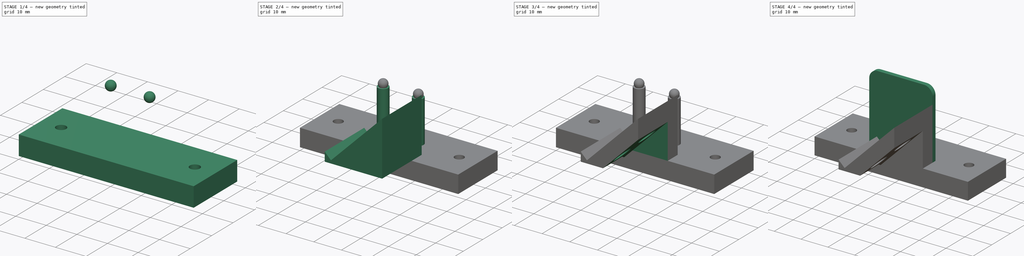
[diagram: build sequence overview — one tinted view per stage of 4, left to right]
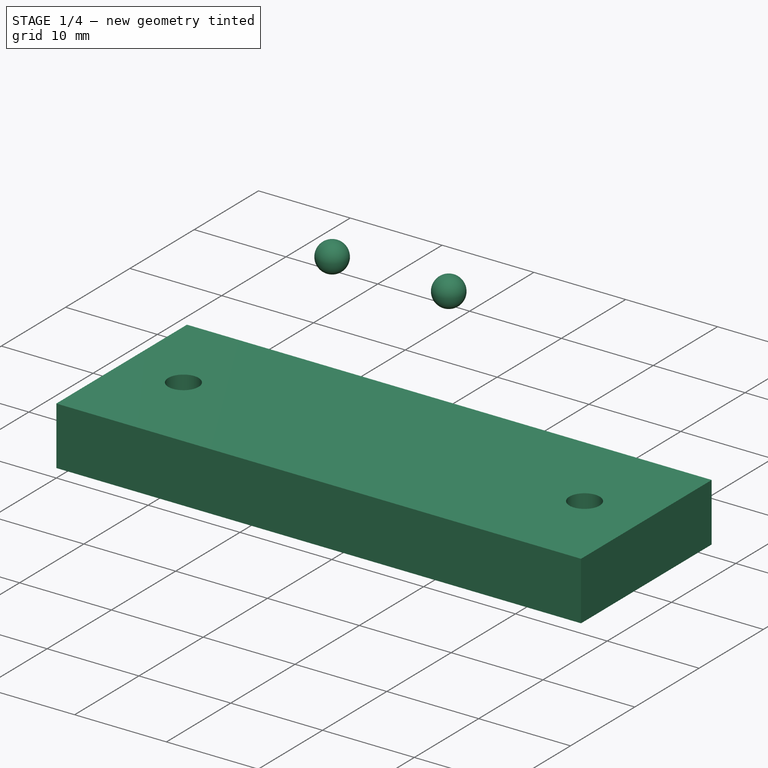
[diagram: stage 1 of 4 — iso view after this stage's code; geometry added in this stage tinted green]
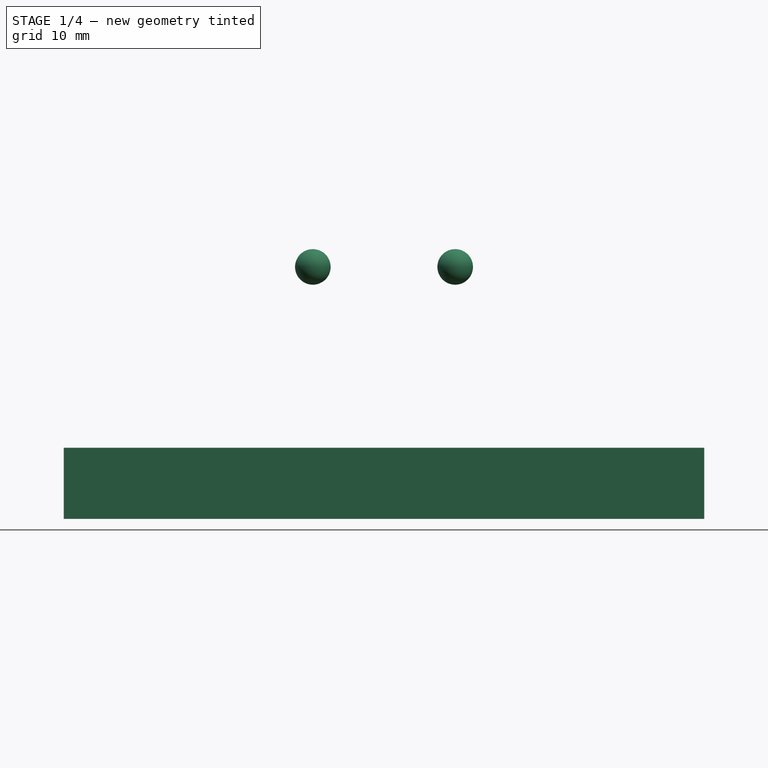
[diagram: stage 1 of 4 — front view after this stage's code; geometry added in this stage tinted green]
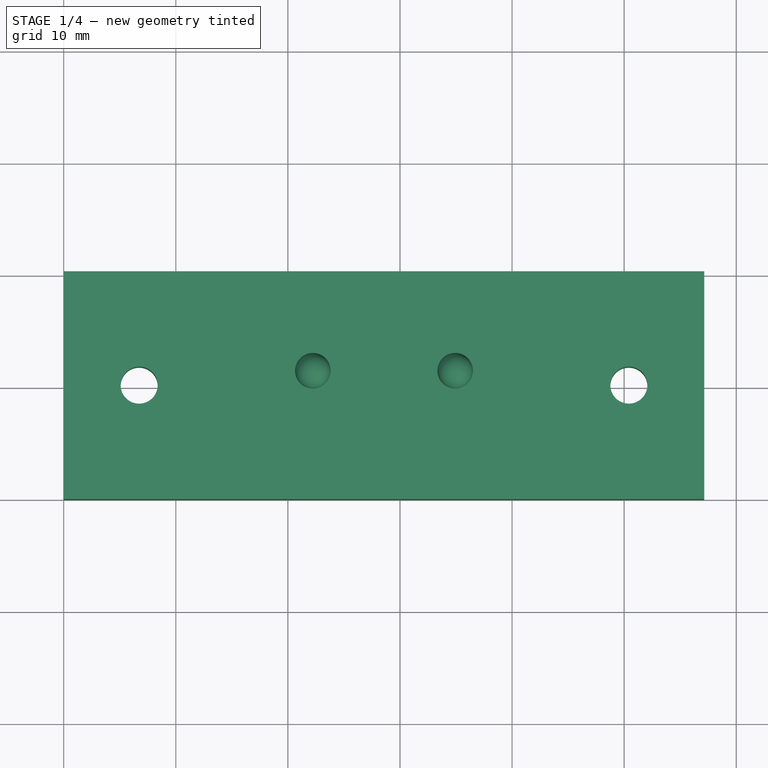
[diagram: stage 1 of 4 — top view after this stage's code; geometry added in this stage tinted green]
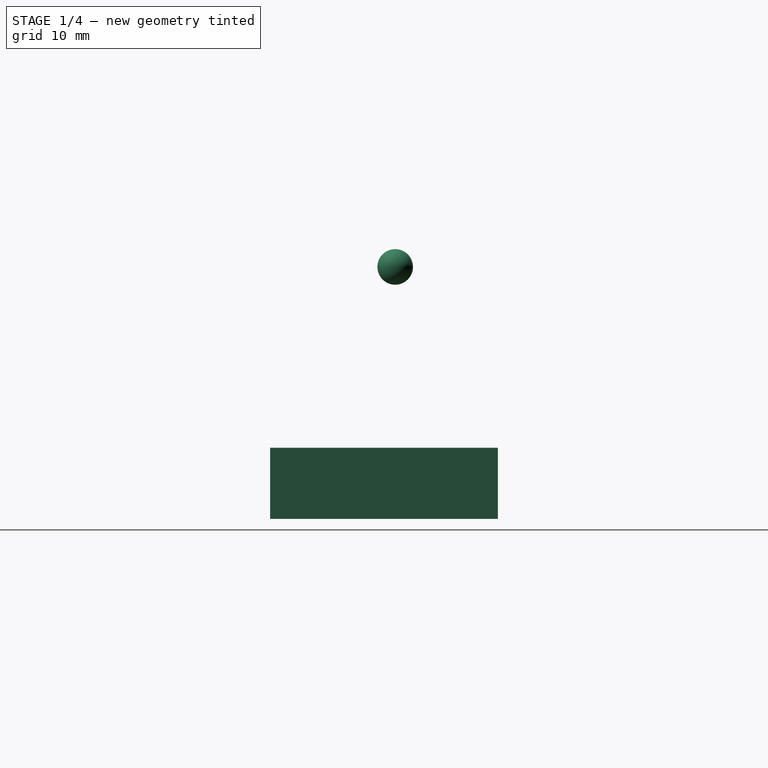
[diagram: stage 1 of 4 — right view after this stage's code; geometry added in this stage tinted green]
FCSTD DOCUMENT  (FreeCAD 0.18R16110 (Git))
Label: Touch post panel below-mounted with front-silvered mirror with magnet holes with wall and post back 1mm with thick base v7.4
License: All rights reserved
LicenseURL: http://en.wikipedia.org/wiki/All_rights_reserved
objects: Sketcher::SketchObject×6, PartDesign::Pad×4, PartDesign::Pocket×2, PartDesign::Fillet×2, PartDesign::Chamfer×2, Part::Sphere×2, PartDesign::Body×1, Part::MultiFuse×1, Spreadsheet::Sheet×1
note: 26 computed .brp shape members not serialized (recipe doc carries the construction recipe); baked Part::Feature solids carry a one-line shape summary decoded from their .brp

FEATURE [Sketcher::SketchObject] Sketch  label="Mounting platform"
  MapMode = 5
  Support = -> [XY_Plane]
  expr: Constraints[16] = (2.25in - 1.72in) / 2
  expr: Constraints[15] = (2.25in - 1.72in) / 2
  expr: Constraints[11] = 0.13in / 2
  sketch-geometry (6):
    g0: LineSegment StartX=0 StartY=20.32 StartZ=0 EndX=57.15 EndY=20.32 EndZ=0
    g1: LineSegment StartX=57.15 StartY=20.32 StartZ=0 EndX=57.15 EndY=0 EndZ=0
    g2: LineSegment StartX=57.15 StartY=0 StartZ=0 EndX=0 EndY=0 EndZ=0
    g3: LineSegment StartX=0 StartY=0 StartZ=0 EndX=0 EndY=20.32 EndZ=0
    g4: Circle CenterX=6.731 CenterY=10.16 CenterZ=0 NormalX=0 NormalY=0 NormalZ=1 AngleXU=0 Radius=1.651
    g5: Circle CenterX=50.419 CenterY=10.16 CenterZ=0 NormalX=0 NormalY=0 NormalZ=1 AngleXU=0 Radius=1.651
  constraints (17):
    c: Coincident(g0,g1)
    c: Coincident(g1,g2)
    c: Coincident(g2,g3)
    c: Coincident(g3,g0)
    c: Horizontal(g0)
    c: Horizontal(g2)
    c: Vertical(g1)
    c: Vertical(g3)
    c: Coincident(g2,g-1)
    c: Distance(g0) = 57.15
    c: Distance(g1) = 20.32
    c: Radius(g4) = 1.651
    c: Equal(g4,g5)
    c: DistanceY(g5,g4) = 0
    c: DistanceY(g-1,g4) = 10.16
    c: DistanceX(g4) = 6.731
    c: DistanceX(g5,g1) = 6.731
FEATURE [PartDesign::Pad] Pad
  Length = 6.35
  Length2 = 99.9998
  Midplane = true
  Profile = -> Sketch
  Type = 0
FEATURE [PartDesign::Body] Body
  Group = -> [Sketch,Pad,Sketch001,Pad001,Sketch002,Pocket,Sketch003,Pad002,Fillet,Chamfer,Chamfer001,Sketch004,Pocket001,Sketch005,Pad003,Fillet001]
  Origin = -> Origin
  Tip = -> Fillet001
FEATURE [Part::Sphere] Sphere  label="Ball1"
  Angle1 = -90
  Angle2 = 90
  Angle3 = 360
  AttacherType = Attacher::AttachEngine3D
  Placement = pos=(34.925,11.16,19.304) rot=(0,0,1;0rad)
  Radius = 1.5875
  expr: Placement.Base.y = 0.4" + ss.dyPost
  expr: Radius = 0.125" / 2
FEATURE [Part::Sphere] Sphere001  label="Ball002"
  Angle1 = -90
  Angle2 = 90
  Angle3 = 360
  AttacherType = Attacher::AttachEngine3D
  Placement = pos=(22.225,11.16,19.304) rot=(0,0,1;0rad)
  Radius = 1.5875
  expr: Placement.Base.y = 0.4" + ss.dyPost
  expr: Radius = 0.125" / 2
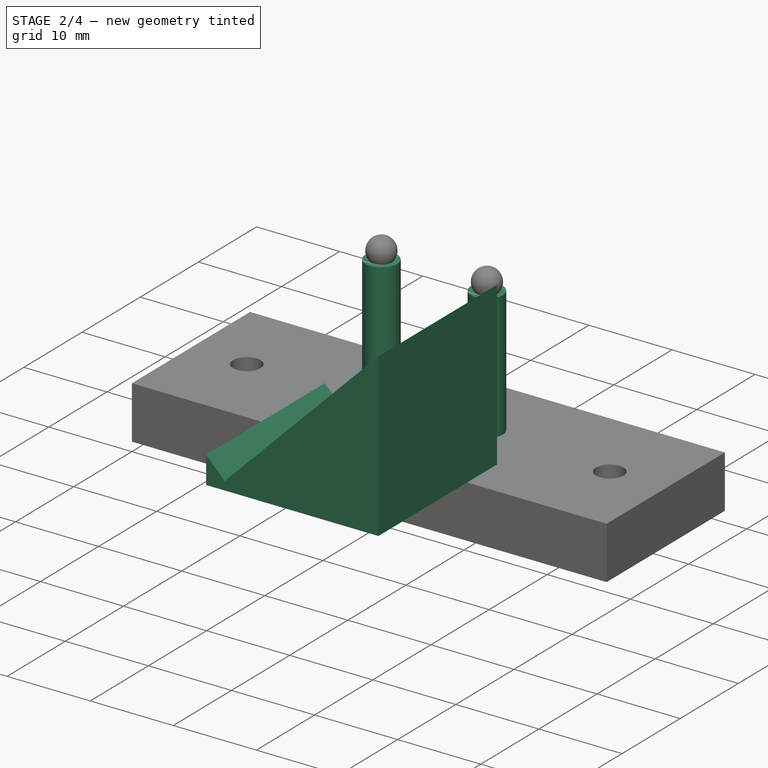
[diagram: stage 2 of 4 — iso view after this stage's code; geometry added in this stage tinted green]
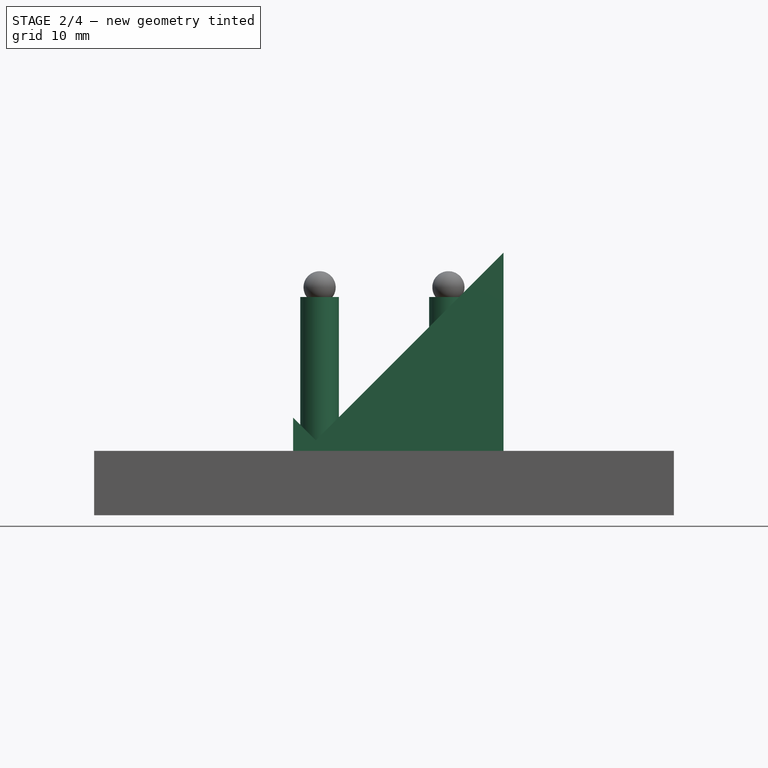
[diagram: stage 2 of 4 — front view after this stage's code; geometry added in this stage tinted green]
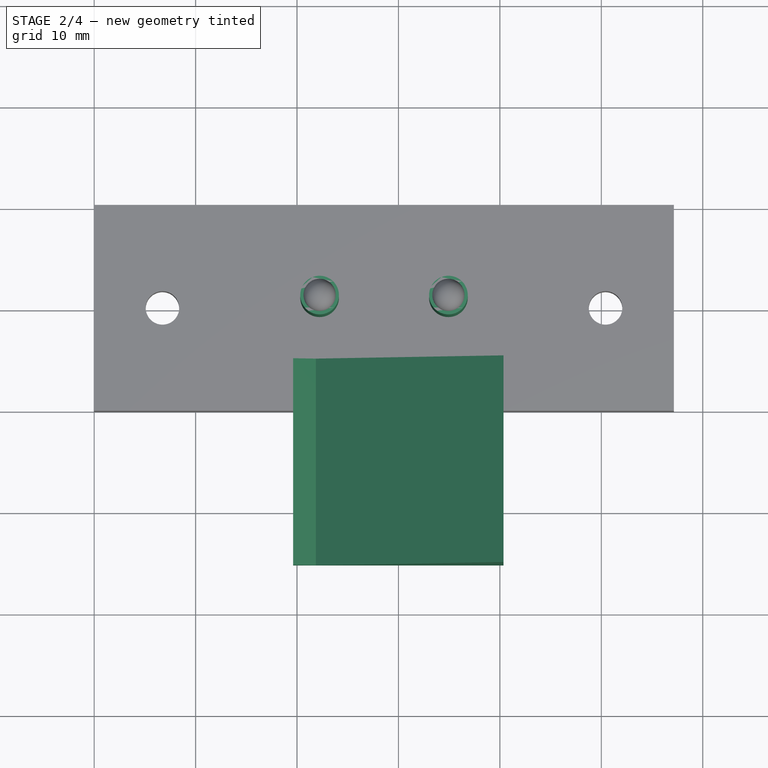
[diagram: stage 2 of 4 — top view after this stage's code; geometry added in this stage tinted green]
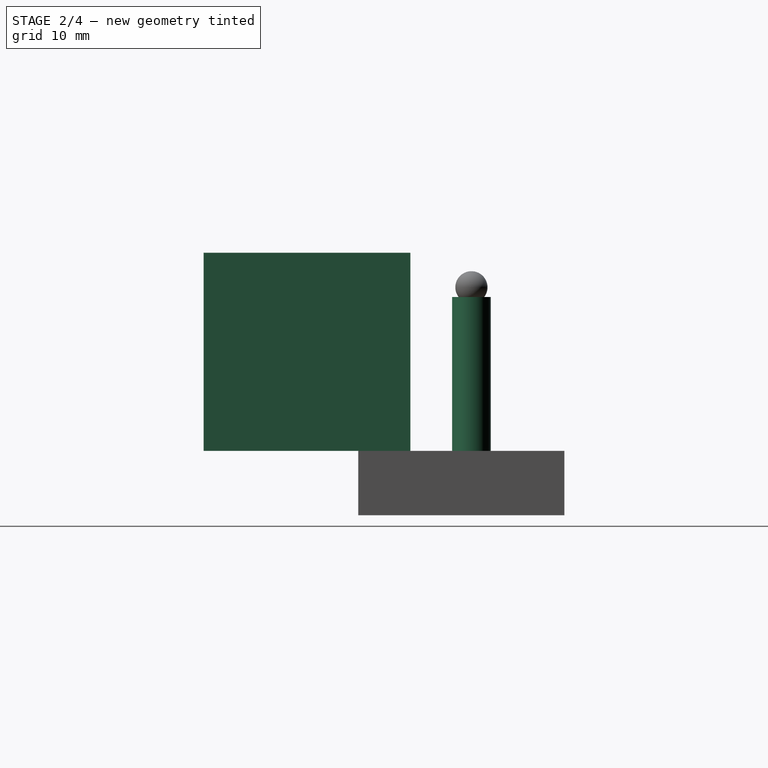
[diagram: stage 2 of 4 — right view after this stage's code; geometry added in this stage tinted green]
FEATURE [Sketcher::SketchObject] Sketch001  label="Posts"
  MapMode = 5
  Placement = pos=(0,0,3.175) rot=(0,0,1;0rad)
  Support = -> [Pad]
  expr: Constraints[3] = 0.4" + ss.dyPost
  expr: Constraints[5] = (2.25in - 0.5in) / 2
  sketch-geometry (2):
    g0: Circle CenterX=22.225 CenterY=11.16 CenterZ=0 NormalX=0 NormalY=0 NormalZ=1 AngleXU=0 Radius=1.905
    g1: Circle CenterX=34.925 CenterY=11.16 CenterZ=0 NormalX=0 NormalY=0 NormalZ=1 AngleXU=0 Radius=1.905
  constraints (6):
    c: Radius(g1) = 1.905
    c: Equal(g1,g0)
    c: DistanceY(g1,g0) = 0
    c: DistanceY(g-1,g0) = 11.16
    c: DistanceX(g0,g1) = 12.7
    c: DistanceX(g-1,g0) = 22.225
FEATURE [PartDesign::Pad] Pad001
  BaseFeature = -> Pad
  Length = 15.175
  Length2 = 99.9998
  Profile = -> Sketch001
  Type = 0
  expr: Length = 3.175mm + 12mm
FEATURE [Sketcher::SketchObject] Sketch002  label="Ball holes"
  MapMode = 5
  Placement = pos=(0,0,-3.175) rot=(1,0,0;3.14159rad)
  Support = -> [Pad001]
  expr: Constraints[2] = -(0.4" + ss.dyPost)
  expr: Constraints[3] = (2.25in - 0.5in) / 2
  sketch-geometry (2):
    g0: Circle CenterX=22.225 CenterY=-11.16 CenterZ=0 NormalX=0 NormalY=0 NormalZ=1 AngleXU=0 Radius=0.9525
    g1: Circle CenterX=34.925 CenterY=-11.16 CenterZ=0 NormalX=0 NormalY=0 NormalZ=1 AngleXU=0 Radius=0.9525
  constraints (6):
    c: DistanceX(g0,g1) = 12.7
    c: DistanceY(g1,g0) = 0
    c: DistanceY(g-1,g0) = -11.16
    c: DistanceX(g-1,g0) = 22.225
    c: Radius(g0) = 0.9525
    c: Equal(g0,g1)
FEATURE [PartDesign::Pocket] Pocket
  BaseFeature = -> Pad001
  Length = 15.875
  Length2 = 99.9998
  Profile = -> Sketch002
  Type = 0
FEATURE [Sketcher::SketchObject] Sketch003  label="Mirror mount"
  MapMode = 5
  Placement = pos=(0,0,0) rot=(1,0,0;1.5708rad)
  Support = -> [Pocket]
  expr: Constraints[7] = (2.25" - 1" / sqrt(2)) / 2
  expr: Constraints[14] = 3.2mm
  sketch-geometry (7):
    g0: LineSegment StartX=40.3568 StartY=3.175 StartZ=0 EndX=40.3568 EndY=22.7116 EndZ=0
    g1: LineSegment StartX=40.3568 StartY=22.7116 StartZ=0 EndX=21.8575 EndY=4.21226 EndZ=0
    g2: LineSegment StartX=21.8575 StartY=4.21226 StartZ=0 EndX=19.6124 EndY=6.45732 EndZ=0
    g3: LineSegment StartX=19.6124 StartY=6.45732 StartZ=0 EndX=19.6124 EndY=3.175 EndZ=0
    g4: LineSegment [constr] StartX=21.8575 StartY=4.21226 StartZ=0 EndX=19.5947 EndY=6.475 EndZ=0
    g5: LineSegment StartX=19.6124 StartY=3.175 StartZ=0 EndX=40.3568 EndY=3.175 EndZ=0
    g6: LineSegment [constr] StartX=19.5947 StartY=6.475 StartZ=0 EndX=37.5553 EndY=24.4355 EndZ=0
  constraints (21):
    c: Coincident(g2,g3)
    c: Perpendicular(g1,g2)
    c: Distance(g1) = 26.162
    c: Vertical(g3)
    c: Vertical(g0)
    c: Coincident(g1,g4)
    c: Parallel(g4,g2)
    c: DistanceX(g-1,g4) = 19.5947
    c: DistanceY(g3,g4) = 3.3
    c: Coincident(g0,g5)
    c: Coincident(g3,g5)
    c: Horizontal(g5)
    c: DistanceY(g-1,g3) = 3.175
    c: Coincident(g1,g2)
    c: Distance(g4) = 3.2
    c: Angle(g5,g1) = 0.785398
    c: Coincident(g1,g0)
    c: Distance(g2) = 3.175
    c: Distance(g6) = 25.4
    c: Coincident(g6,g4)
    c: Perpendicular(g4,g6)
FEATURE [PartDesign::Pad] Pad002
  BaseFeature = -> Pocket
  Length = 15.24
  Length2 = 5.1402
  Profile = -> Sketch003
  Type = 4
  expr: Length2 = 0.163" + ss.dyWall
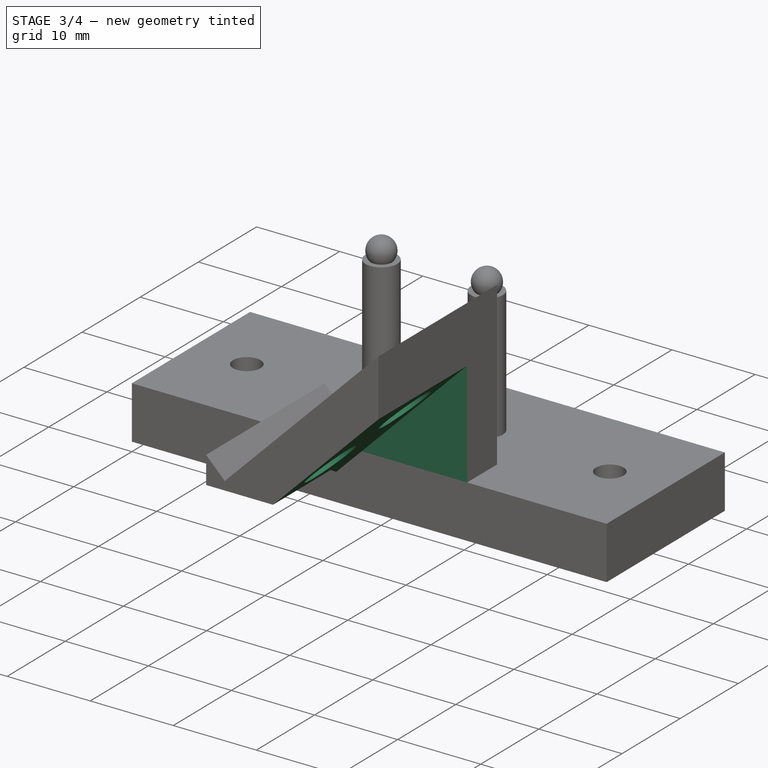
[diagram: stage 3 of 4 — iso view after this stage's code; geometry added in this stage tinted green]
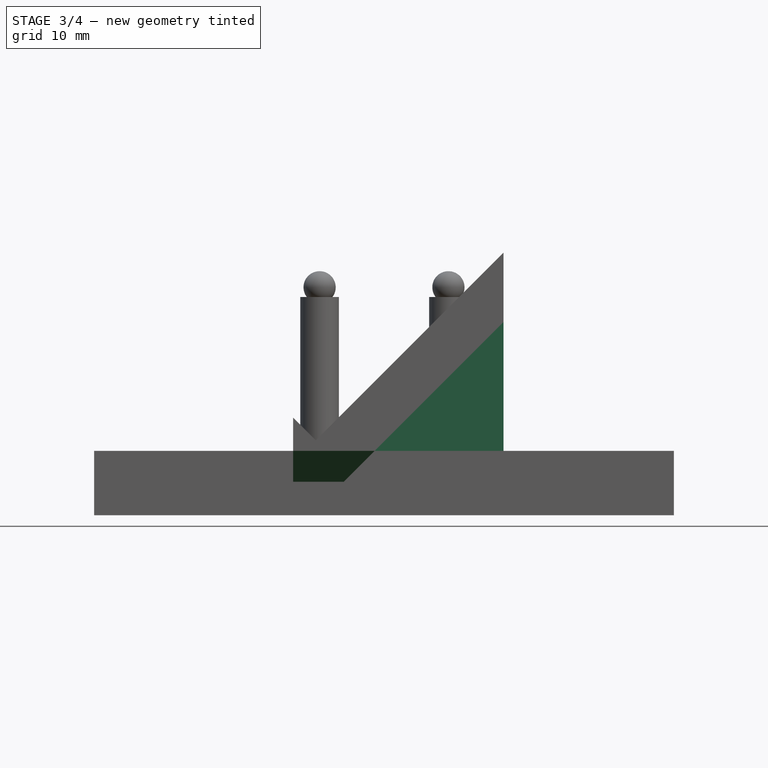
[diagram: stage 3 of 4 — front view after this stage's code; geometry added in this stage tinted green]
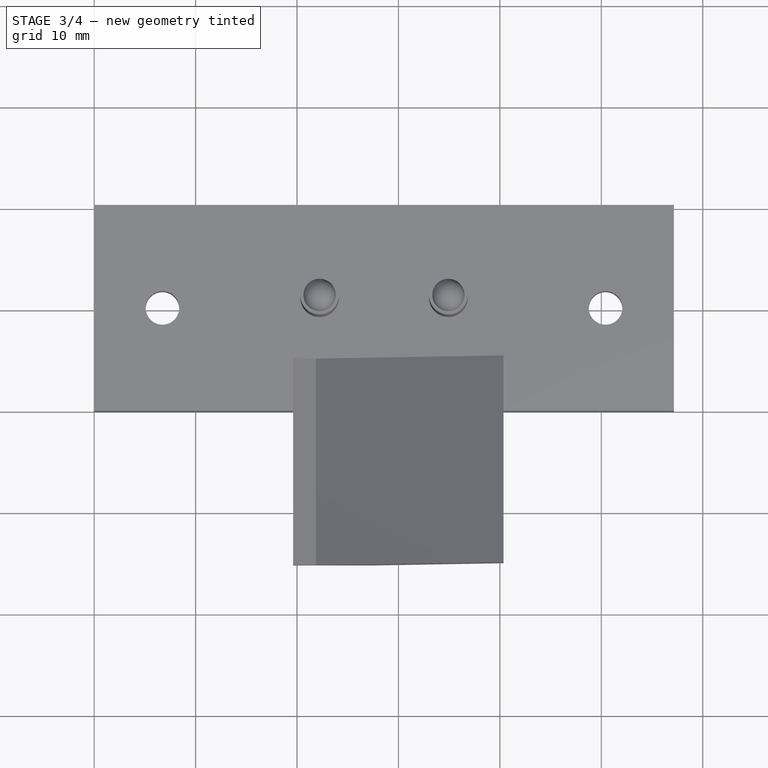
[diagram: stage 3 of 4 — top view after this stage's code; geometry added in this stage tinted green]
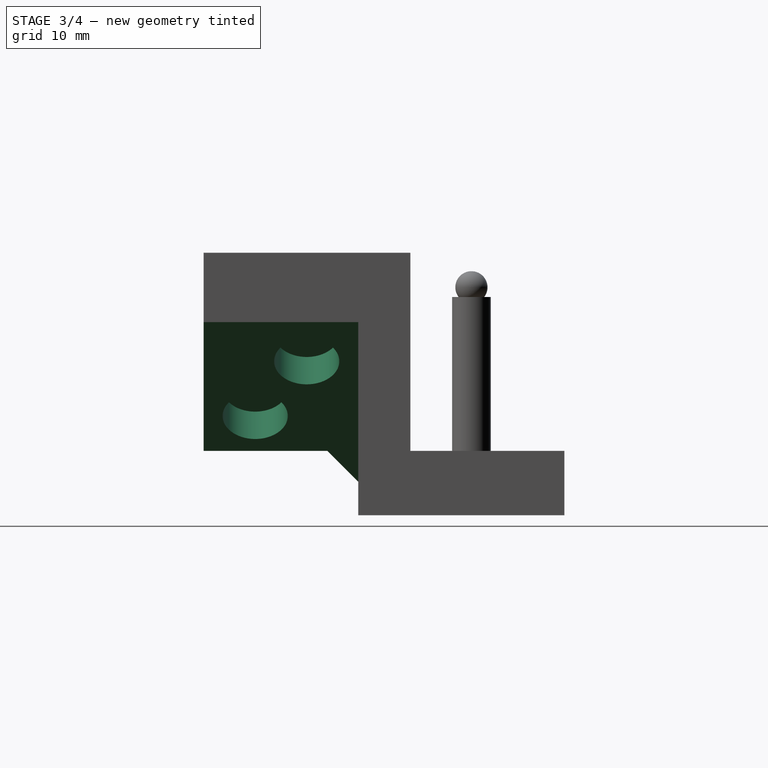
[diagram: stage 3 of 4 — right view after this stage's code; geometry added in this stage tinted green]
FEATURE [PartDesign::Fillet] Fillet
  Base = -> Pad002 [Edge14,Edge13]
  BaseFeature = -> Pad002
  Radius = 1.27
FEATURE [PartDesign::Chamfer] Chamfer
  Base = -> Fillet [Edge34]
  BaseFeature = -> Fillet
  Size = 12.7
FEATURE [PartDesign::Chamfer] Chamfer001
  Base = -> Chamfer [Edge1]
  BaseFeature = -> Chamfer
  Size = 3.048
FEATURE [Sketcher::SketchObject] Sketch004  label="Magnet holes"
  MapMode = 5
  Placement = pos=(12.2409,-5.9e-15,-12.2409) rot=(0.678598,0.678598,0.281085;2.59356rad)
  Support = -> [Chamfer001]
  expr: Constraints[0] = (0.25in + 0.003in) / 2
  sketch-geometry (2):
    g0: Circle CenterX=-10.16 CenterY=26.67 CenterZ=0 NormalX=0 NormalY=0 NormalZ=1 AngleXU=0 Radius=3.2131
    g1: Circle CenterX=-5.08 CenterY=34.29 CenterZ=0 NormalX=0 NormalY=0 NormalZ=1 AngleXU=0 Radius=3.2131
  constraints (6):
    c: Radius(g0) = 3.2131
    c: Equal(g0,g1)
    c: DistanceX(g0,g-1) = 10.16
    c: DistanceY(g-1,g0) = 26.67
    c: DistanceX(g0,g1) = 5.08
    c: DistanceY(g0,g1) = 7.62
FEATURE [PartDesign::Pocket] Pocket001
  BaseFeature = -> Chamfer001
  Length = 3.81762
  Length2 = 99.9998
  Profile = -> Sketch004
  Type = 0
  expr: Length = 0.1903" - 0.04"
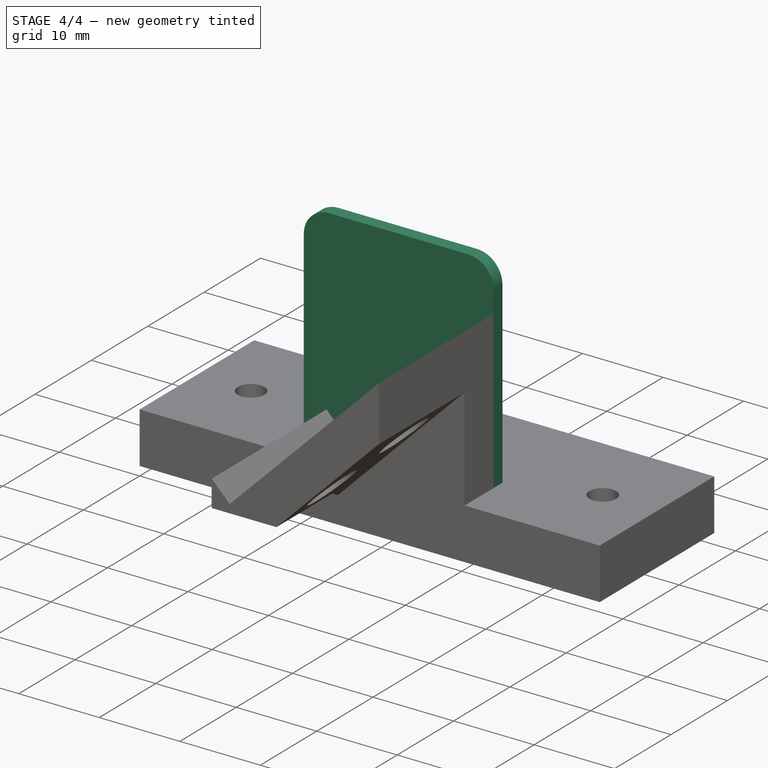
[diagram: stage 4 of 4 — iso view after this stage's code; geometry added in this stage tinted green]
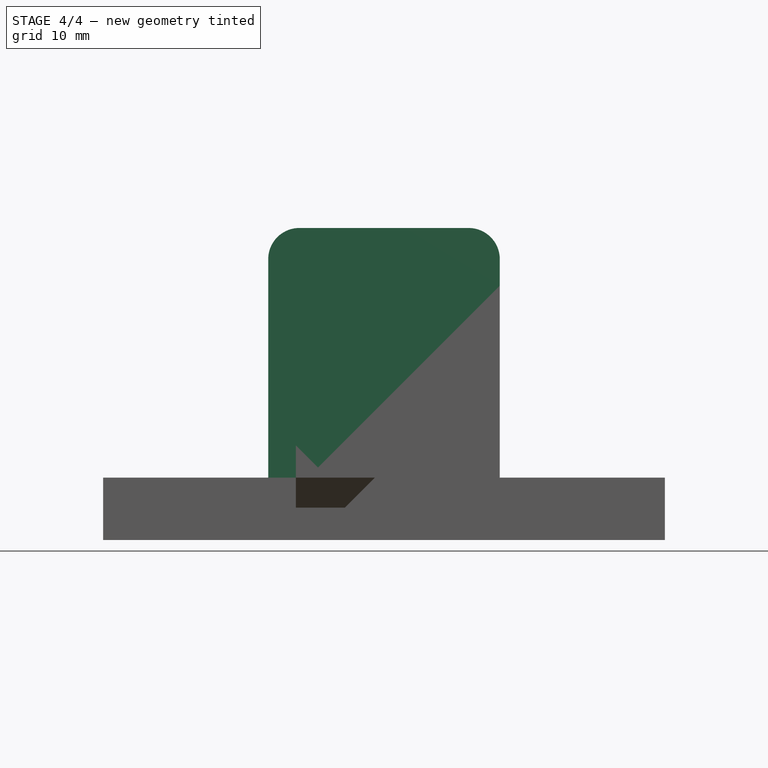
[diagram: stage 4 of 4 — front view after this stage's code; geometry added in this stage tinted green]
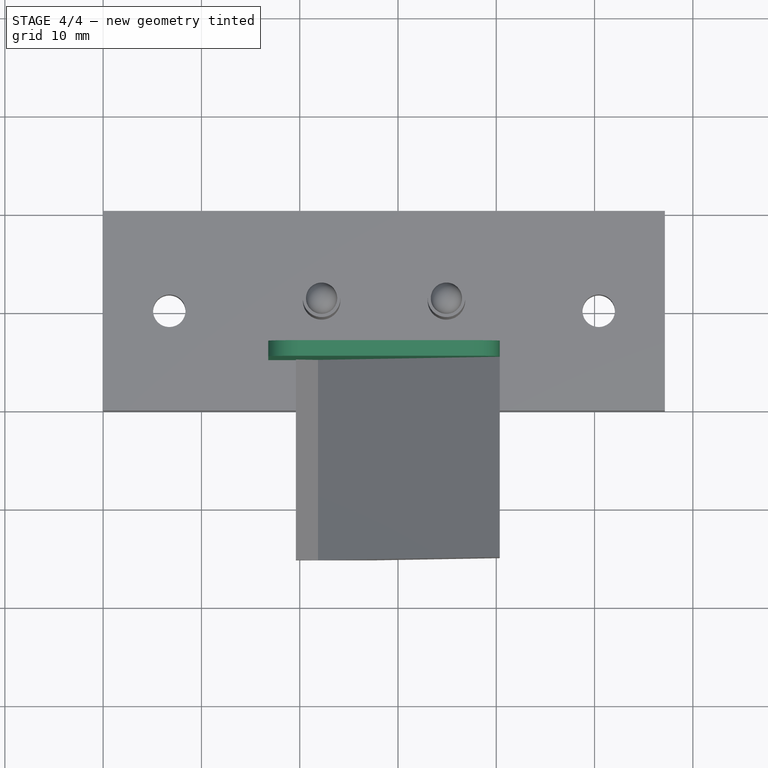
[diagram: stage 4 of 4 — top view after this stage's code; geometry added in this stage tinted green]
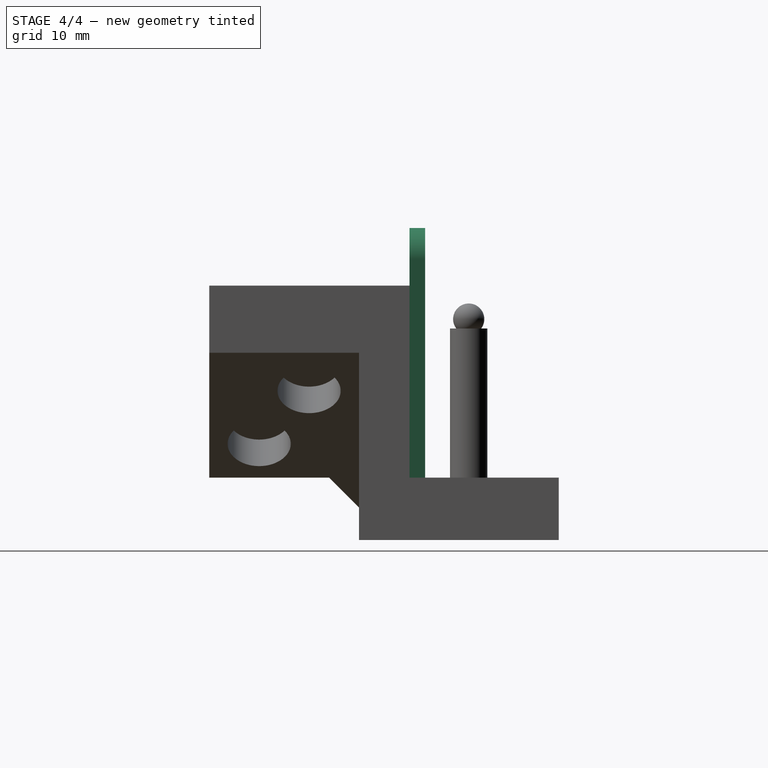
[diagram: stage 4 of 4 — right view after this stage's code; geometry added in this stage tinted green]
FEATURE [Sketcher::SketchObject] Sketch005  label="Wall"
  ExternalGeometry = -> [Pocket001]
  MapMode = 5
  Placement = pos=(0,5.1402,-1.1e-15) rot=(0,0.707107,0.707107;3.14159rad)
  Support = -> [Pocket001]
  expr: Constraints[11] = -2.25" / 2
  sketch-geometry (5):
    g0: LineSegment StartX=-40.3568 StartY=28.575 StartZ=0 EndX=-16.7932 EndY=28.575 EndZ=0
    g1: LineSegment StartX=-16.7932 StartY=28.575 StartZ=0 EndX=-16.7932 EndY=3.175 EndZ=0
    g2: LineSegment StartX=-16.7932 StartY=3.175 StartZ=0 EndX=-40.3568 EndY=3.175 EndZ=0
    g3: LineSegment StartX=-40.3568 StartY=3.175 StartZ=0 EndX=-40.3568 EndY=28.575 EndZ=0
    g4: LineSegment [constr] StartX=-28.575 StartY=28.575 StartZ=0 EndX=-28.575 EndY=3.175 EndZ=0
  constraints (15):
    c: Coincident(g0,g1)
    c: Coincident(g1,g2)
    c: Coincident(g2,g3)
    c: Coincident(g3,g0)
    c: Horizontal(g0)
    c: Horizontal(g2)
    c: Vertical(g1)
    c: Vertical(g3)
    c: DistanceY(g2) = 3.175
    c: PointOnObject(g4,g2)
    c: PointOnObject(g4,g0)
    c: DistanceX(g4) = -28.575
    c: Symmetric(g0,g0,g4)
    c: Distance(g3) = 25.4
    c: PointOnObject(g-3,g3)
FEATURE [PartDesign::Pad] Pad003
  BaseFeature = -> Pocket001
  Length = 1.5875
  Length2 = 99.9998
  Profile = -> Sketch005
  Type = 0
FEATURE [PartDesign::Fillet] Fillet001
  Base = -> Pad003 [Edge57,Edge63]
  BaseFeature = -> Pad003
  Radius = 3.175
FEATURE [Part::MultiFuse] Fusion
  Shapes = -> [Body,Sphere,Sphere001]
FEATURE [Spreadsheet::Sheet] Spreadsheet  label="ss"
  cells = A1=Wall displacement; B1(dyWall)==1mm; A2=Post displacement; B2(dyPost)==1mm
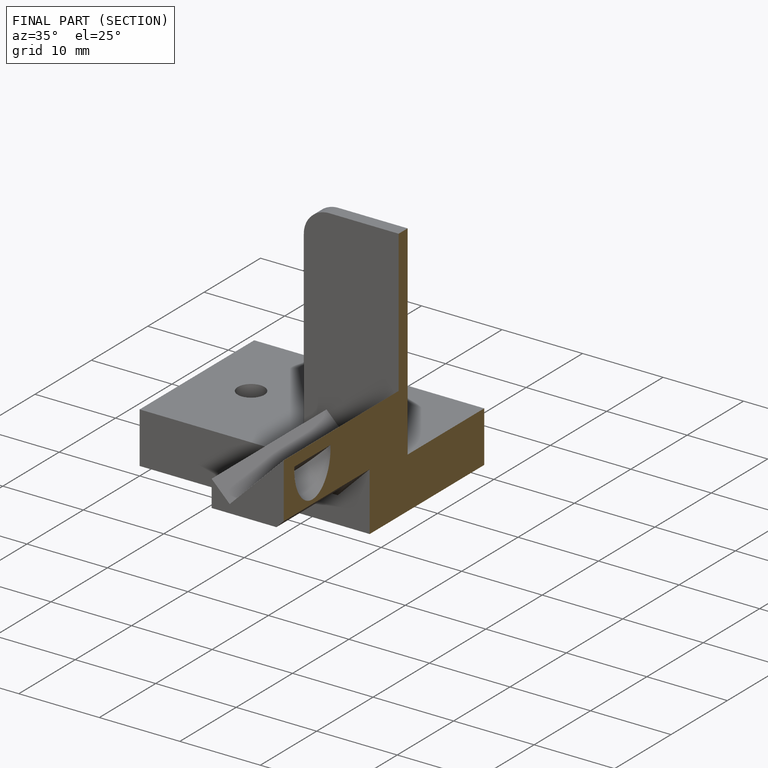
[diagram: finished part — half-section view (interior)]
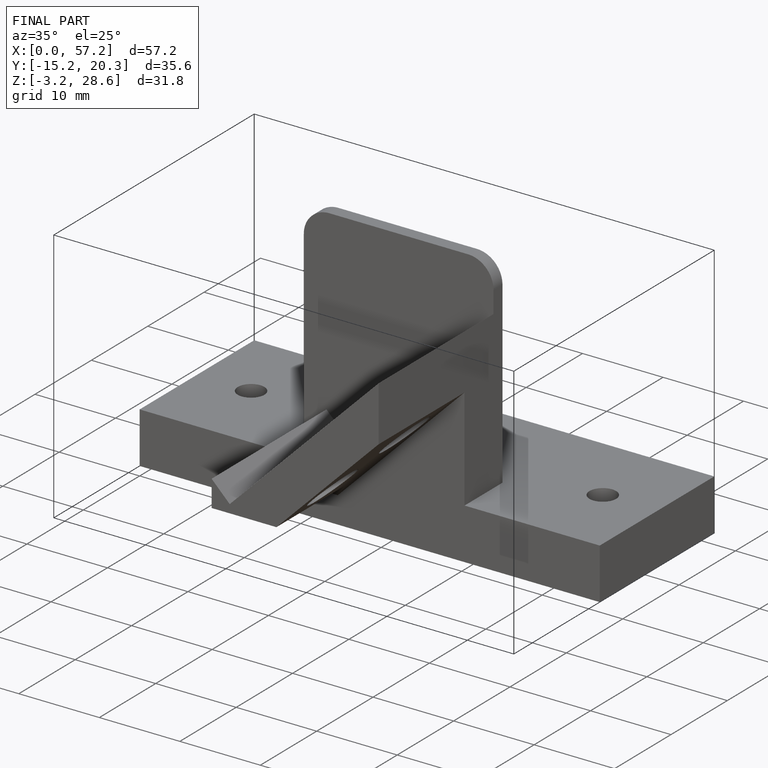
[diagram: finished part — iso view with bounding-box wireframe]
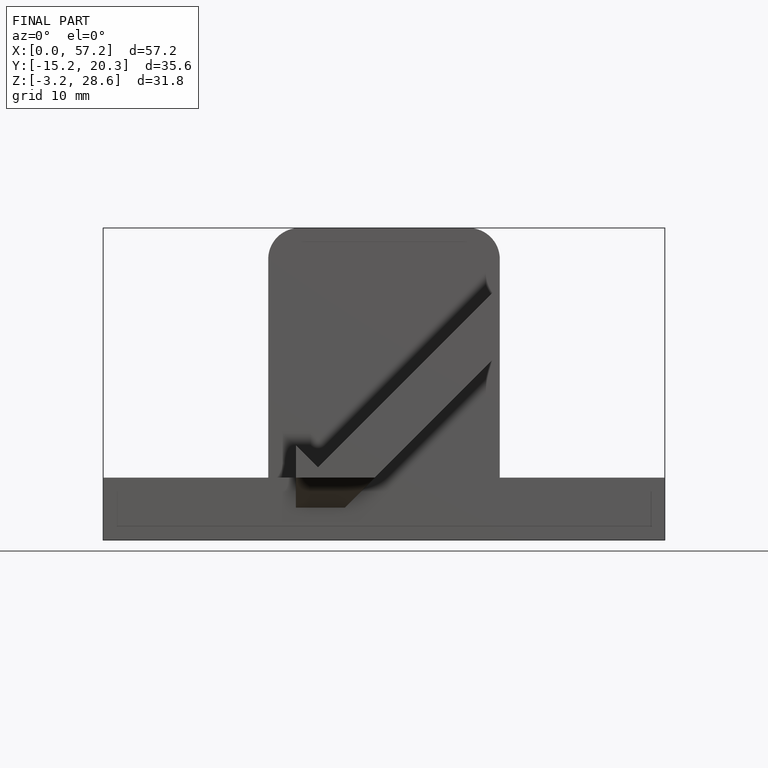
[diagram: finished part — front view with bounding-box wireframe]
